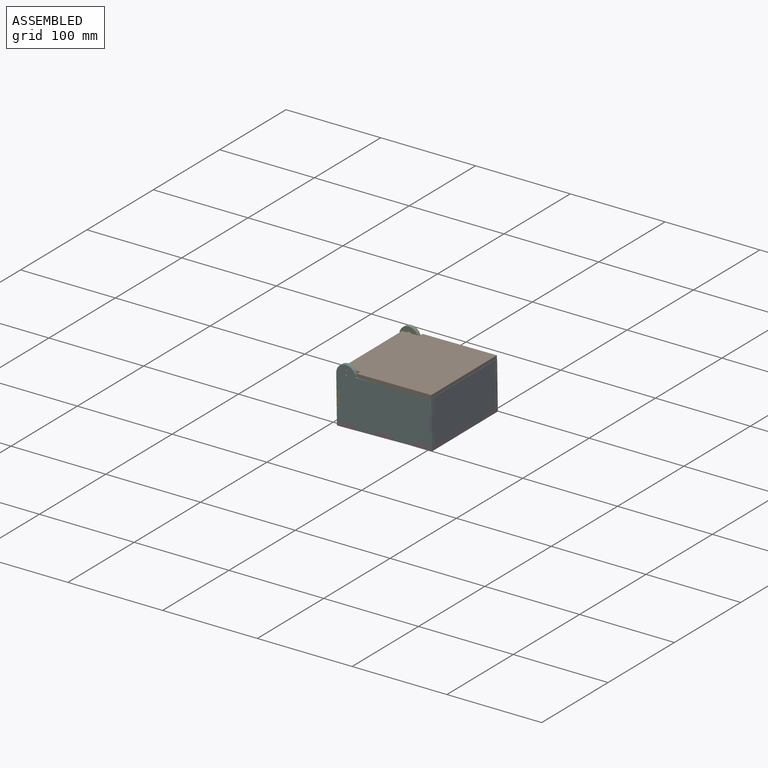
[diagram: assembled view]
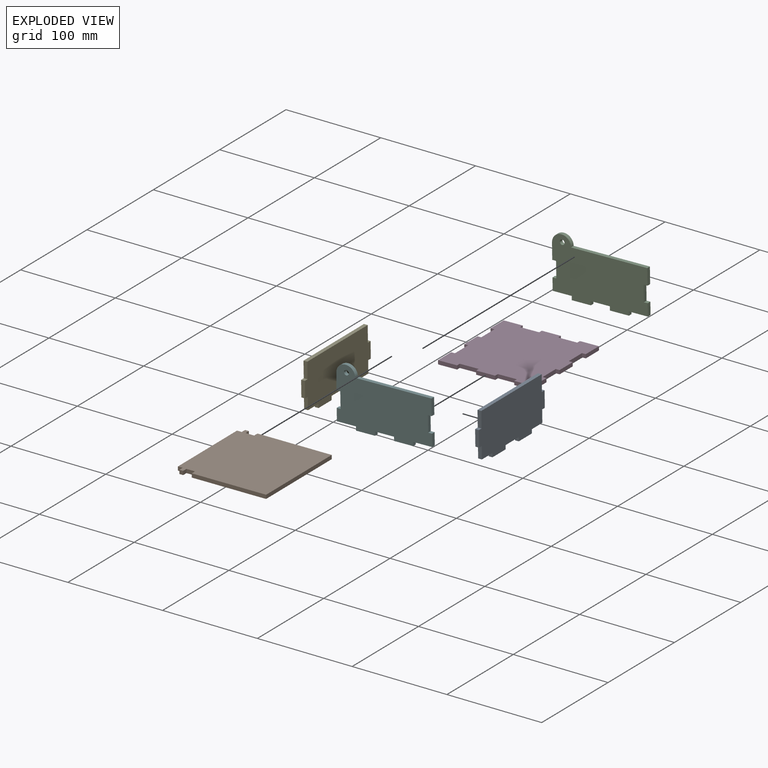
[diagram: exploded view]
GUIDED TOUR — MATED ASSEMBLY (Onshape document 094356303882595e90816846, AutoMate assembly 094356303882595e90816846_53f9541e1c70ac6278a6380b_fa754432ed5df0bc3006adc8_default)

This assembly has 6 components, labeled P0..P5 below (a component is one placed occurrence of a part; the same part can appear more than once), held together by 5 mates. A mate is a constraint between two components; its type names the relative motion it leaves free:
  FASTENED — locks the two components together rigidly (no relative motion),
  REVOLUTE — leaves rotation about the listed axis free (a hinge).
Axis/direction vectors are unit vectors and 'through' points are millimeter coordinates, both in the assembly's world frame.

MATES
  1. FASTENED "Fastened 4": P4 <-> P3, direction (0.008, -1.000, 0.004) through (-86.83, 9.39, -12.31) mm
  2. FASTENED "Fastened 1": P3 <-> P2, direction (-0.008, 1.000, -0.004) through (-49.48, 89.68, -9.95) mm
  3. REVOLUTE "Revolute 2": P1 <-> P5, axis (0.008, -1.000, 0.004) through (-78.85, -10.35, 38.46) mm
  4. FASTENED "Fastened 2": P3 <-> P5, direction (1.000, 0.008, 0.018) through (-68.70, -8.47, -11.91) mm
  5. FASTENED "Fastened 3": P0 <-> P3, direction (-0.008, 1.000, -0.004) through (8.69, 70.12, -10.83) mm

ASSEMBLY ORDER
  1. P5 — the base component [order verified]
  2. P3 [order verified]
  3. P1 [order verified]
  4. P2 [order verified]
  5. P0 [order verified]
  6. P4 [order verified]
Order-tag legend:
  [order verified] — this step's position reverses a verified removal order: the component was checked to insert without passing through the ones already placed.

Of the 6 components, 6 carry the full construction recipe — the FeatureScript program that regenerates the part's solid from scratch; the rest are supplied as boundary geometry only.
Each toured component is shown spotlighted twice — in the assembled view, then in the exploded view, where a leader line traces a displaced component back to its assembled socket (saturated green if recipe-attached, orange if geometry-only; every other component desaturated gray) — followed by its recipe or geometry summary and the mates that hold it.
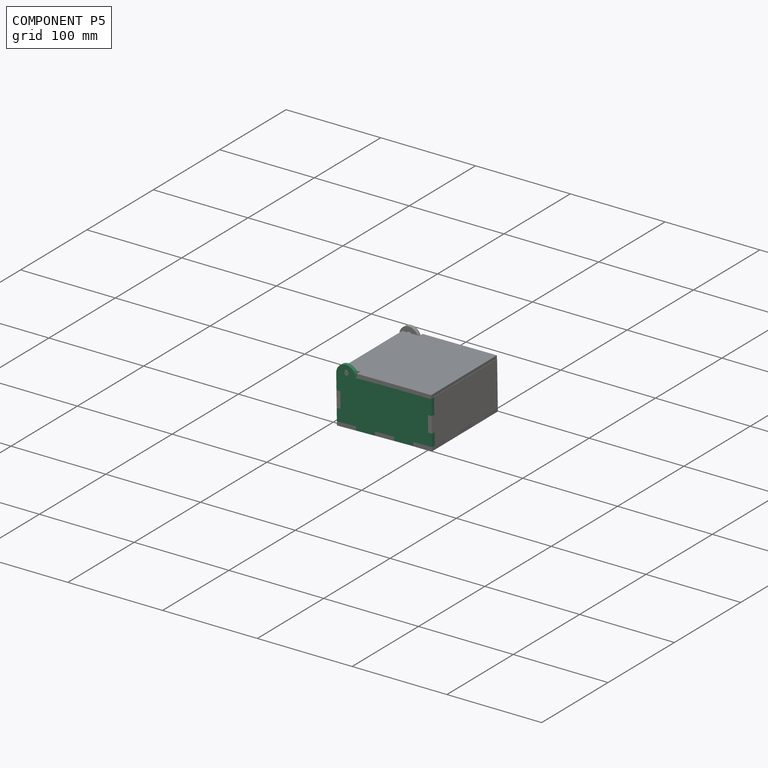
[diagram: component P5 — assembled]
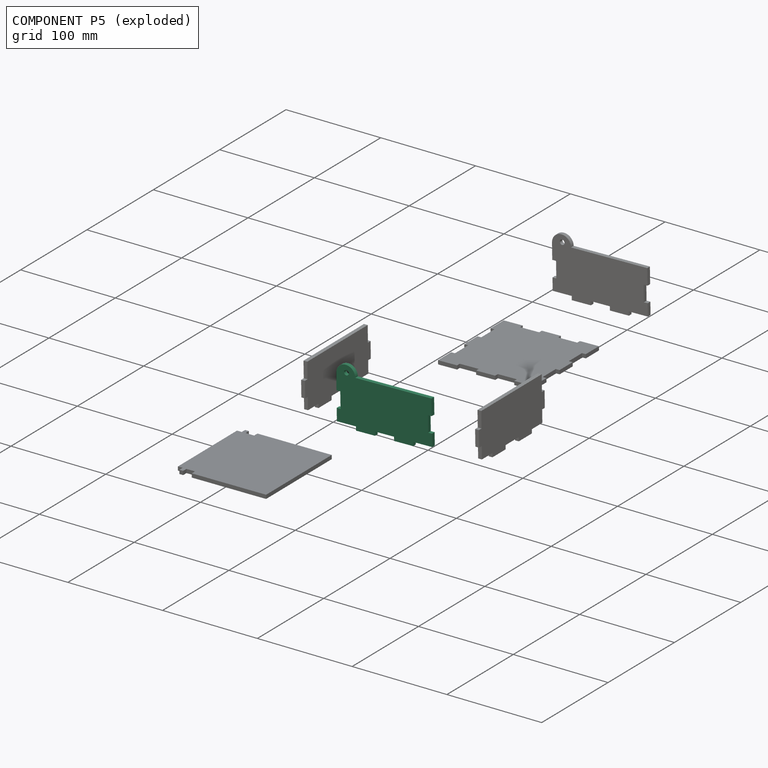
[diagram: component P5 — exploded]
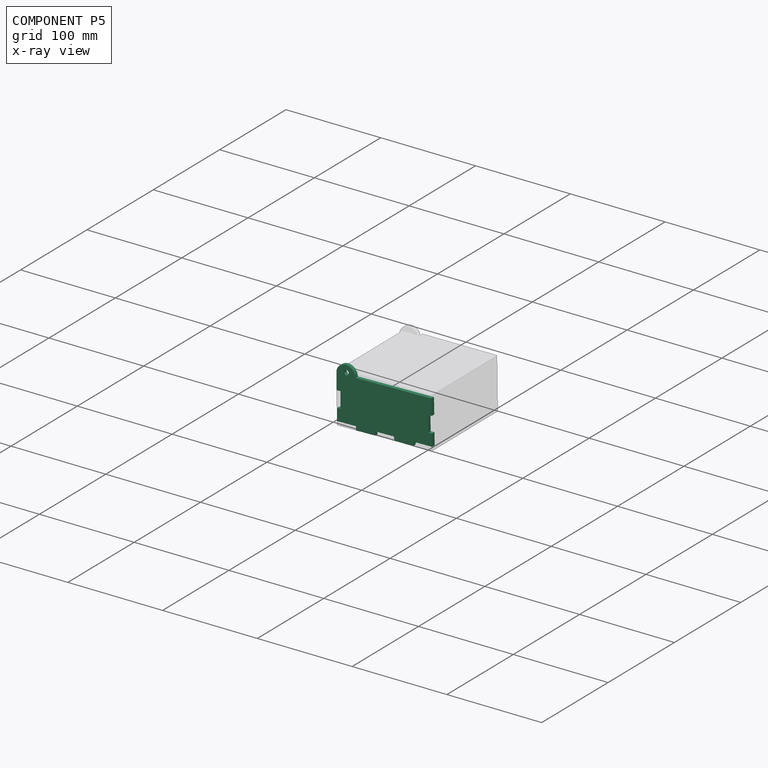
[diagram: component P5 — x-ray view]
COMPONENT P5 — same part as P2 (CADFS 00479811); its construction recipe is shown at P2.
Held by: REVOLUTE mate "Revolute 2" to P1; FASTENED mate "Fastened 2" to P3.
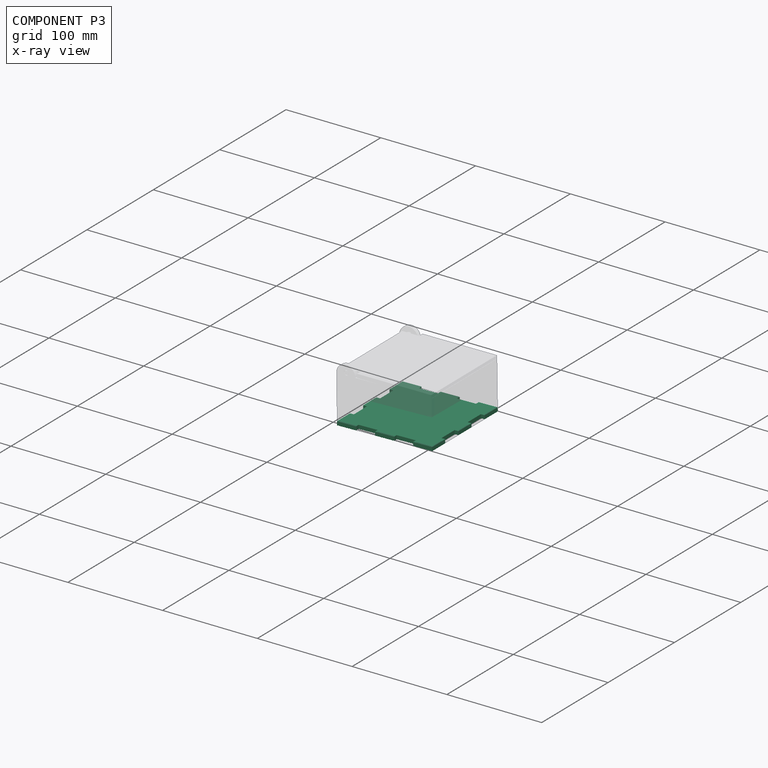
[diagram: component P3 — x-ray view]
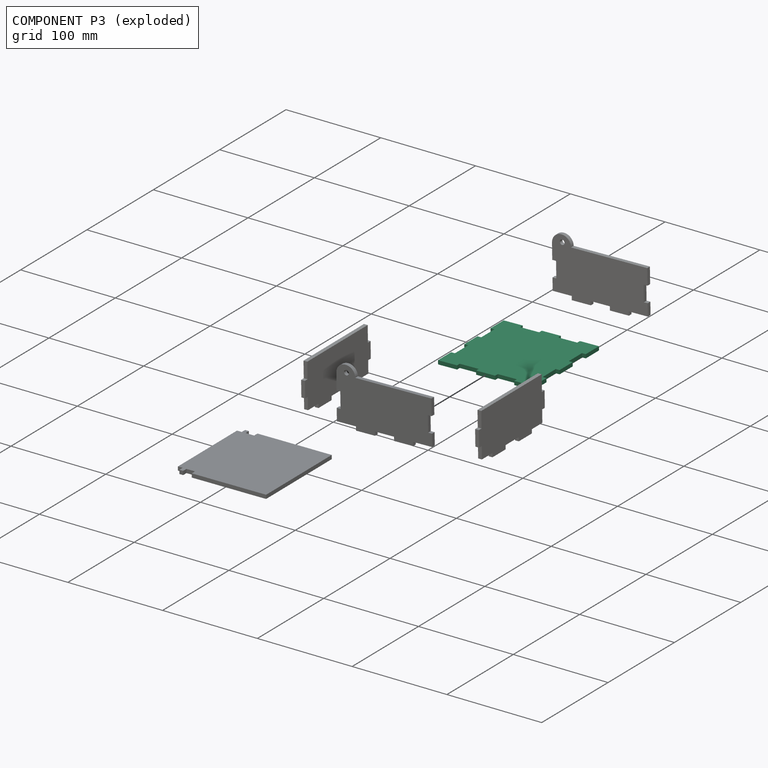
[diagram: component P3 — exploded]
COMPONENT P3 — recipe-attached (CADFS 00479810, mesh-verified: the recipe's output STEP matches this component's geometry to below the mesh-comparison resolution (tessellation chordal tolerance ~0.212 mm)).
Held by: FASTENED mate "Fastened 4" to P4; FASTENED mate "Fastened 1" to P2; FASTENED mate "Fastened 2" to P5; FASTENED mate "Fastened 3" to P0.
Construction recipe (FeatureScript — the CAD program that rebuilds this solid; sketch coordinates are in the units given by the * unit suffixes, e.g. mm):

FeatureScript 1549;
import(path : "onshape/std/geometry.fs", version : "1549.0");
import(path : "onshape/std/common.fs", version : "1549.0");
const mm = millimeter;
const VERTEX = EntityType.VERTEX;
const EDGE = EntityType.EDGE;
const FACE = EntityType.FACE;
const BODY = EntityType.BODY;
function v(x, y){return vector(x, y);}
function OD(order){return orderDisambiguation(order);}
function OSD(set){return originalSetDisambiguation(set);}
function TD(topology){return topologyDisambiguation(topology);}
function TDD(query){return trueDependencyDisambiguation(query);}
function sQuery(a, b, c) {return sketchEntityQuery(a, b, c);}

annotation { "Feature Type Name" : "Feature", "Feature Type Description" : "" }
export const myFeature = defineFeature(function(context is Context, id is Id, definition is map)
    precondition{}
    {
        {
            var Q0;
            Q0=qCreatedBy(makeId("Top.planeOp"),FACE);
            var sketch = newSketch(context, id + "F0", { "sketchPlane" : qUnion([Q0])});
            skLineSegment(sketch, "E0.bottom", {"start": v(0, 0) * mm, "end": v(100, 0) * mm});
            skLineSegment(sketch, "E0.top", {"start": v(0, 100) * mm, "end": v(100, 100) * mm});
            skLineSegment(sketch, "E0.left", {"start": v(0, 0) * mm, "end": v(0, 100) * mm});
            skLineSegment(sketch, "E0.right", {"start": v(100, 0) * mm, "end": v(100, 100) * mm});
            skSolve(sketch);
        }
        {
            var Q0;
            Q0 = qSketchRegion(id + "F0", true);
            extrude(context, id + "F1", {"entities" : qUnion([Q0]), "depth" : 4 * mm});
        }
        {
            var Q0;
            Q0=qCreatedBy(makeId("Top.planeOp"),FACE);
            var sketch = newSketch(context, id + "F2", { "sketchPlane" : qUnion([Q0])});
            skLineSegment(sketch, "E1.bottom", {"start": v(20, 0) * mm, "end": v(40, 0) * mm});
            skLineSegment(sketch, "E1.top", {"start": v(20, 4) * mm, "end": v(40, 4) * mm});
            skLineSegment(sketch, "E1.left", {"start": v(20, 0) * mm, "end": v(20, 4) * mm});
            skLineSegment(sketch, "E1.right", {"start": v(40, 0) * mm, "end": v(40, 4) * mm});
            skLineSegment(sketch, "E2.bottom", {"start": v(60, 0) * mm, "end": v(80, 0) * mm});
            skLineSegment(sketch, "E2.top", {"start": v(60, 4) * mm, "end": v(80, 4) * mm});
            skLineSegment(sketch, "E2.left", {"start": v(60, 0) * mm, "end": v(60, 4) * mm});
            skLineSegment(sketch, "E2.right", {"start": v(80, 0) * mm, "end": v(80, 4) * mm});
            skLineSegment(sketch, "E3.bottom", {"start": v(0, 20) * mm, "end": v(4, 20) * mm});
            skLineSegment(sketch, "E3.top", {"start": v(0, 40) * mm, "end": v(4, 40) * mm});
            skLineSegment(sketch, "E3.left", {"start": v(0, 20) * mm, "end": v(0, 40) * mm});
            skLineSegment(sketch, "E3.right", {"start": v(4, 20) * mm, "end": v(4, 40) * mm});
            skLineSegment(sketch, "E4.bottom", {"start": v(0, 60) * mm, "end": v(4, 60) * mm});
            skLineSegment(sketch, "E4.top", {"start": v(0, 80) * mm, "end": v(4, 80) * mm});
            skLineSegment(sketch, "E4.left", {"start": v(0, 60) * mm, "end": v(0, 80) * mm});
            skLineSegment(sketch, "E4.right", {"start": v(4, 60) * mm, "end": v(4, 80) * mm});
            skLineSegment(sketch, "E5.bottom", {"start": v(20, 100) * mm, "end": v(40, 100) * mm});
            skLineSegment(sketch, "E5.top", {"start": v(20, 96) * mm, "end": v(40, 96) * mm});
            skLineSegment(sketch, "E5.left", {"start": v(20, 100) * mm, "end": v(20, 96) * mm});
            skLineSegment(sketch, "E5.right", {"start": v(40, 100) * mm, "end": v(40, 96) * mm});
            skLineSegment(sketch, "E6.bottom", {"start": v(60, 96) * mm, "end": v(80, 96) * mm});
            skLineSegment(sketch, "E6.top", {"start": v(60, 100) * mm, "end": v(80, 100) * mm});
            skLineSegment(sketch, "E6.left", {"start": v(60, 96) * mm, "end": v(60, 100) * mm});
            skLineSegment(sketch, "E6.right", {"start": v(80, 96) * mm, "end": v(80, 100) * mm});
            skLineSegment(sketch, "E7.bottom", {"start": v(96, 80) * mm, "end": v(100, 80) * mm});
            skLineSegment(sketch, "E7.top", {"start": v(96, 60) * mm, "end": v(100, 60) * mm});
            skLineSegment(sketch, "E7.left", {"start": v(96, 80) * mm, "end": v(96, 60) * mm});
            skLineSegment(sketch, "E7.right", {"start": v(100, 80) * mm, "end": v(100, 60) * mm});
            skLineSegment(sketch, "E8.bottom", {"start": v(100, 20) * mm, "end": v(96, 20) * mm});
            skLineSegment(sketch, "E8.top", {"start": v(100, 40) * mm, "end": v(96, 40) * mm});
            skLineSegment(sketch, "E8.left", {"start": v(100, 20) * mm, "end": v(100, 40) * mm});
            skLineSegment(sketch, "E8.right", {"start": v(96, 20) * mm, "end": v(96, 40) * mm});
            skSolve(sketch);
        }
        {
            var Q0;
            Q0 = qSketchRegion(id + "F2", true);
            extrude(context, id + "F3", {"entities" : qUnion([Q0]), "operationType" : NewBodyOperationType.REMOVE, "depth" : 4 * mm});
        }
    });
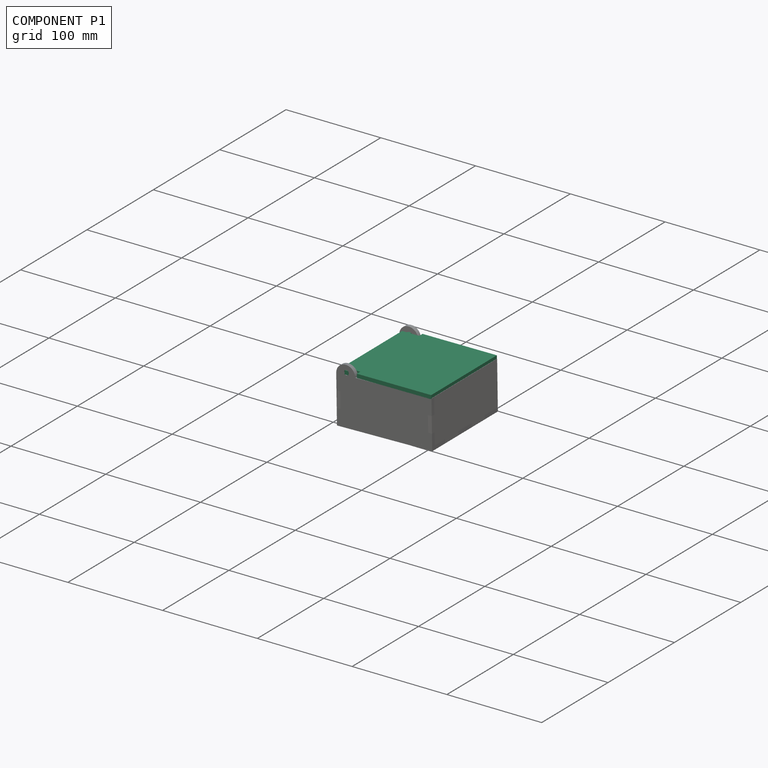
[diagram: component P1 — assembled]
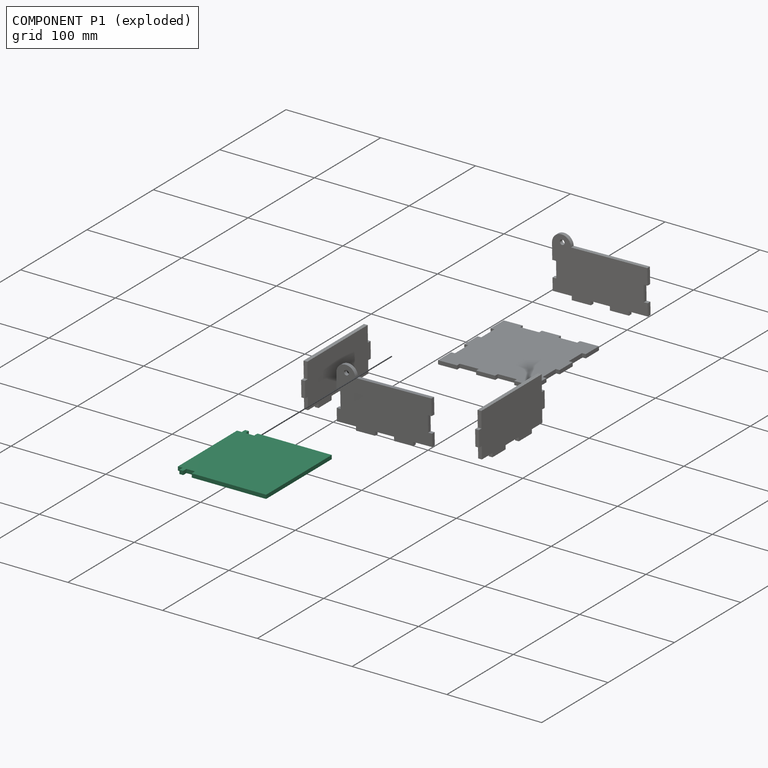
[diagram: component P1 — exploded]
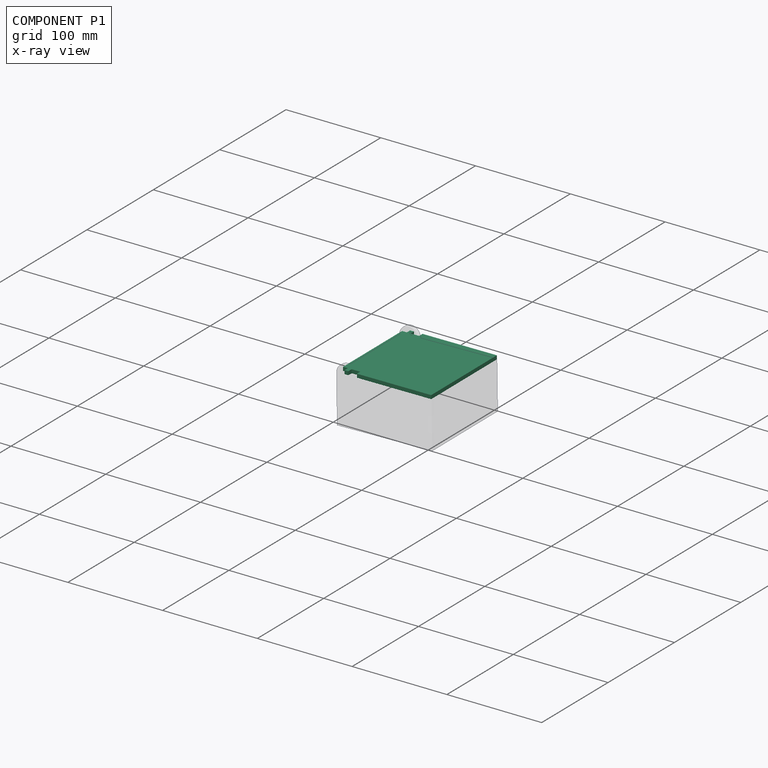
[diagram: component P1 — x-ray view]
COMPONENT P1 — recipe-attached (CADFS 00479814, mesh-verified: the recipe's output STEP matches this component's geometry to below the mesh-comparison resolution (tessellation chordal tolerance ~0.208 mm)).
Held by: REVOLUTE mate "Revolute 2" to P5.
Construction recipe (FeatureScript — the CAD program that rebuilds this solid; sketch coordinates are in the units given by the * unit suffixes, e.g. mm):

FeatureScript 1549;
import(path : "onshape/std/geometry.fs", version : "1549.0");
import(path : "onshape/std/common.fs", version : "1549.0");
const mm = millimeter;
const VERTEX = EntityType.VERTEX;
const EDGE = EntityType.EDGE;
const FACE = EntityType.FACE;
const BODY = EntityType.BODY;
function v(x, y){return vector(x, y);}
function OD(order){return orderDisambiguation(order);}
function OSD(set){return originalSetDisambiguation(set);}
function TD(topology){return topologyDisambiguation(topology);}
function TDD(query){return trueDependencyDisambiguation(query);}
function sQuery(a, b, c) {return sketchEntityQuery(a, b, c);}

annotation { "Feature Type Name" : "Feature", "Feature Type Description" : "" }
export const myFeature = defineFeature(function(context is Context, id is Id, definition is map)
    precondition{}
    {
        {
            var Q0;
            Q0=qCreatedBy(makeId("Top.planeOp"),FACE);
            var sketch = newSketch(context, id + "F0", { "sketchPlane" : qUnion([Q0])});
            skLineSegment(sketch, "E0.bottom", {"start": v(0, 0) * mm, "end": v(100, 0) * mm});
            skLineSegment(sketch, "E0.top", {"start": v(0, 100) * mm, "end": v(100, 100) * mm});
            skLineSegment(sketch, "E0.left", {"start": v(0, 0) * mm, "end": v(0, 100) * mm});
            skLineSegment(sketch, "E0.right", {"start": v(100, 0) * mm, "end": v(100, 100) * mm});
            skSolve(sketch);
        }
        {
            var Q0;
            Q0 = qSketchRegion(id + "F0", true);
            extrude(context, id + "F1", {"entities" : qUnion([Q0]), "depth" : 4 * mm});
        }
        {
            var Q0;
            Q0=qCreatedBy(makeId("Top.planeOp"),FACE);
            var sketch = newSketch(context, id + "F2", { "sketchPlane" : qUnion([Q0])});
            skLineSegment(sketch, "E1.bottom", {"start": v(0, 0) * mm, "end": v(5, 0) * mm});
            skLineSegment(sketch, "E1.top", {"start": v(0, 22) * mm, "end": v(5, 22) * mm});
            skLineSegment(sketch, "E1.left", {"start": v(0, 0) * mm, "end": v(0, 22) * mm});
            skLineSegment(sketch, "E1.right", {"start": v(5, 0) * mm, "end": v(5, 22) * mm});
            skLineSegment(sketch, "E2.bottom", {"start": v(100, 0) * mm, "end": v(95, 0) * mm});
            skLineSegment(sketch, "E2.top", {"start": v(100, 22) * mm, "end": v(95, 22) * mm});
            skLineSegment(sketch, "E2.left", {"start": v(100, 0) * mm, "end": v(100, 22) * mm});
            skLineSegment(sketch, "E2.right", {"start": v(95, 0) * mm, "end": v(95, 22) * mm});
            skSolve(sketch);
        }
        {
            var Q0;
            Q0 = qSketchRegion(id + "F2", true);
            extrude(context, id + "F3", {"entities" : qUnion([Q0]), "operationType" : NewBodyOperationType.REMOVE, "depth" : 4 * mm});
        }
        {
            var Q0;
            Q0=qCreatedBy(makeId("Top.planeOp"),FACE);
            var sketch = newSketch(context, id + "F4", { "sketchPlane" : qUnion([Q0])});
            skLineSegment(sketch, "E3.bottom", {"start": v(5, 13) * mm, "end": v(-5, 13) * mm});
            skLineSegment(sketch, "E3.top", {"start": v(5, 9) * mm, "end": v(-5, 9) * mm});
            skLineSegment(sketch, "E3.left", {"start": v(5, 13) * mm, "end": v(5, 9) * mm});
            skLineSegment(sketch, "E3.right", {"start": v(-5, 13) * mm, "end": v(-5, 9) * mm});
            skLineSegment(sketch, "E4.bottom", {"start": v(95, 13) * mm, "end": v(105, 13) * mm});
            skLineSegment(sketch, "E4.top", {"start": v(95, 9) * mm, "end": v(105, 9) * mm});
            skLineSegment(sketch, "E4.left", {"start": v(95, 13) * mm, "end": v(95, 9) * mm});
            skLineSegment(sketch, "E4.right", {"start": v(105, 13) * mm, "end": v(105, 9) * mm});
            skSolve(sketch);
        }
        {
            var Q0;
            Q0 = qSketchRegion(id + "F4", true);
            extrude(context, id + "F5", {"entities" : qUnion([Q0]), "operationType" : NewBodyOperationType.ADD, "depth" : 4 * mm});
        }
        {
            var Q0;
            Q0=qCreatedBy(makeId("Top.planeOp"),FACE);
            var sketch = newSketch(context, id + "F6", { "sketchPlane" : qUnion([Q0])});
            skLineSegment(sketch, "E5.bottom", {"start": v(-5, 13) * mm, "end": v(0, 13) * mm});
            skLineSegment(sketch, "E5.top", {"start": v(-5, 9) * mm, "end": v(0, 9) * mm});
            skLineSegment(sketch, "E5.left", {"start": v(-5, 13) * mm, "end": v(-5, 9) * mm});
            skLineSegment(sketch, "E5.right", {"start": v(0, 13) * mm, "end": v(0, 9) * mm});
            skSolve(sketch);
        }
        {
            var Q0;
            Q0 = qSketchRegion(id + "F6", true);
            extrude(context, id + "F7", {"entities" : qUnion([Q0]), "operationType" : NewBodyOperationType.REMOVE, "depth" : 4 * mm, "offsetDistance" : 25 * mm});
        }
        {
            var Q0;
            Q0=qCreatedBy(makeId("Top.planeOp"),FACE);
            var sketch = newSketch(context, id + "F8", { "sketchPlane" : qUnion([Q0])});
            skLineSegment(sketch, "E6.bottom", {"start": v(105, 9) * mm, "end": v(100, 9) * mm});
            skLineSegment(sketch, "E6.top", {"start": v(105, 13) * mm, "end": v(100, 13) * mm});
            skLineSegment(sketch, "E6.left", {"start": v(105, 9) * mm, "end": v(105, 13) * mm});
            skLineSegment(sketch, "E6.right", {"start": v(100, 9) * mm, "end": v(100, 13) * mm});
            skSolve(sketch);
        }
        {
            var Q0;
            Q0 = qSketchRegion(id + "F8", true);
            extrude(context, id + "F9", {"entities" : qUnion([Q0]), "operationType" : NewBodyOperationType.REMOVE, "depth" : 4 * mm, "offsetDistance" : 25 * mm});
        }
        {
            var Q0;
            Q0=qCreatedBy(makeId("Top.planeOp"),FACE);
            var sketch = newSketch(context, id + "F10", { "sketchPlane" : qUnion([Q0])});
            skLineSegment(sketch, "E7.bottom", {"start": v(95, 0) * mm, "end": v(5, 0) * mm});
            skLineSegment(sketch, "E7.top", {"start": v(95, 4) * mm, "end": v(5, 4) * mm});
            skLineSegment(sketch, "E7.left", {"start": v(95, 0) * mm, "end": v(95, 4) * mm});
            skLineSegment(sketch, "E7.right", {"start": v(5, 0) * mm, "end": v(5, 4) * mm});
            skSolve(sketch);
        }
        {
            var Q0;
            Q0 = qSketchRegion(id + "F10", true);
            extrude(context, id + "F11", {"entities" : qUnion([Q0]), "operationType" : NewBodyOperationType.REMOVE, "depth" : 4 * mm, "offsetDistance" : 25 * mm});
        }
    });
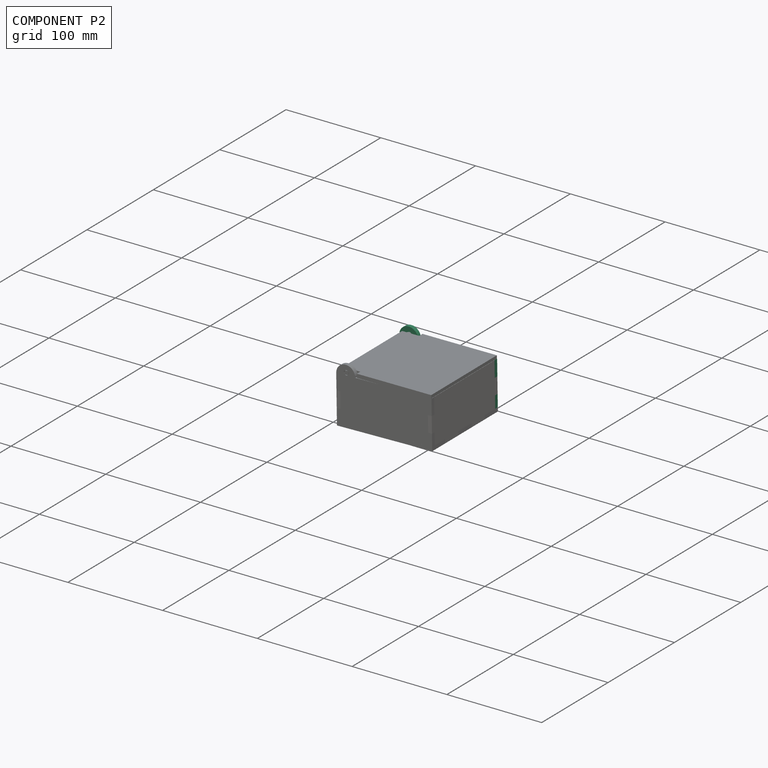
[diagram: component P2 — assembled]
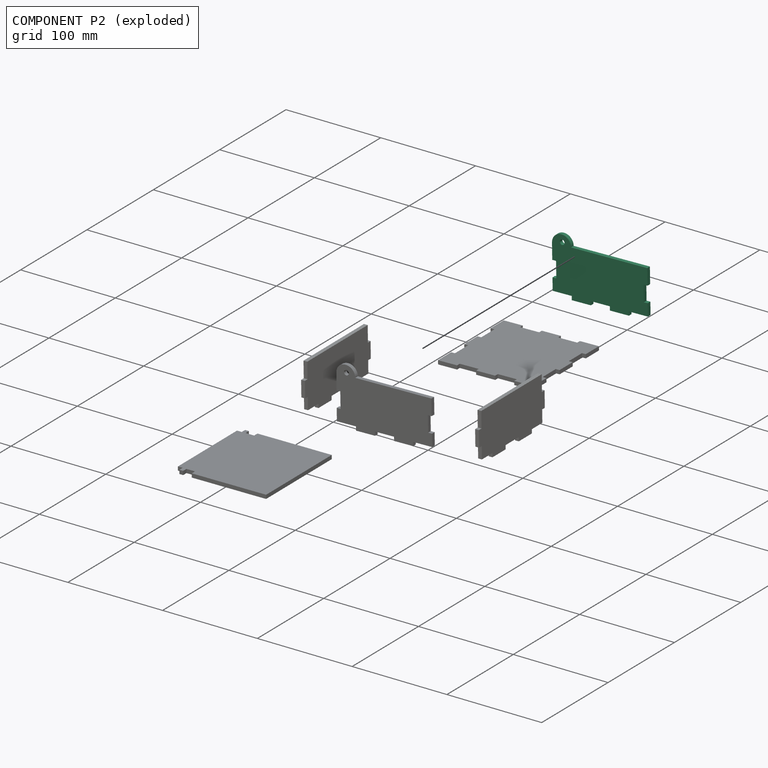
[diagram: component P2 — exploded]
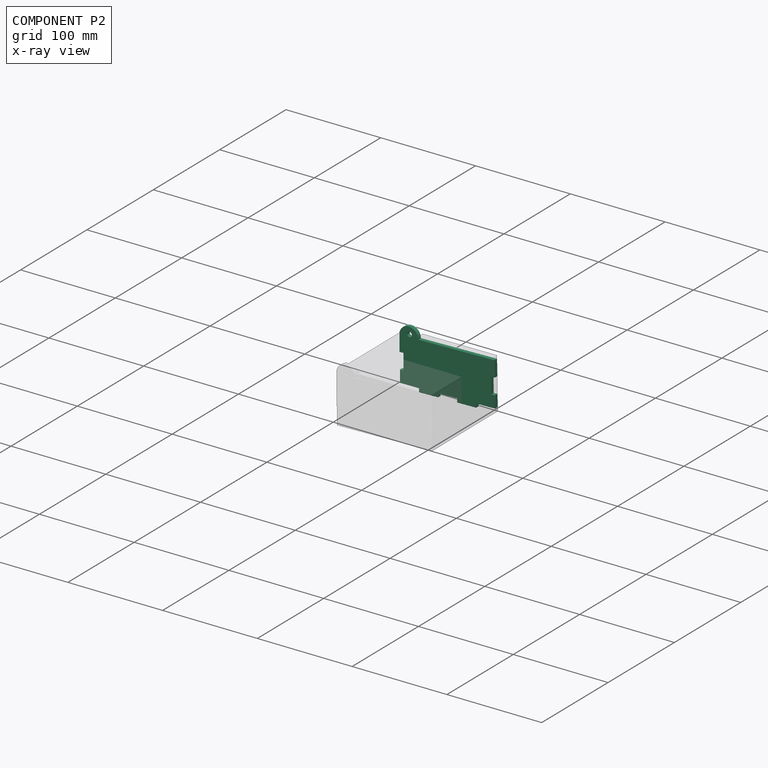
[diagram: component P2 — x-ray view]
COMPONENT P2 — recipe-attached (CADFS 00479811, mesh-verified: the recipe's output STEP matches this component's geometry to below the mesh-comparison resolution (tessellation chordal tolerance ~0.175 mm)).
Held by: FASTENED mate "Fastened 1" to P3.
Construction recipe (FeatureScript — the CAD program that rebuilds this solid; sketch coordinates are in the units given by the * unit suffixes, e.g. mm):

FeatureScript 1549;
import(path : "onshape/std/geometry.fs", version : "1549.0");
import(path : "onshape/std/common.fs", version : "1549.0");
const mm = millimeter;
const VERTEX = EntityType.VERTEX;
const EDGE = EntityType.EDGE;
const FACE = EntityType.FACE;
const BODY = EntityType.BODY;
function v(x, y){return vector(x, y);}
function OD(order){return orderDisambiguation(order);}
function OSD(set){return originalSetDisambiguation(set);}
function TD(topology){return topologyDisambiguation(topology);}
function TDD(query){return trueDependencyDisambiguation(query);}
function sQuery(a, b, c) {return sketchEntityQuery(a, b, c);}

annotation { "Feature Type Name" : "Feature", "Feature Type Description" : "" }
export const myFeature = defineFeature(function(context is Context, id is Id, definition is map)
    precondition{}
    {
        {
            var Q0;
            Q0=qCreatedBy(makeId("Front.planeOp"),FACE);
            var sketch = newSketch(context, id + "F0", { "sketchPlane" : qUnion([Q0])});
            skLineSegment(sketch, "E0.bottom", {"start": v(0, 0) * mm, "end": v(100, 0) * mm});
            skLineSegment(sketch, "E0.top", {"start": v(0, 50) * mm, "end": v(100, 50) * mm});
            skLineSegment(sketch, "E0.left", {"start": v(0, 0) * mm, "end": v(0, 50) * mm});
            skLineSegment(sketch, "E0.right", {"start": v(100, 0) * mm, "end": v(100, 50) * mm});
            skSolve(sketch);
        }
        {
            var Q0;
            Q0 = qSketchRegion(id + "F0", true);
            extrude(context, id + "F1", {"entities" : qUnion([Q0]), "depth" : 4 * mm});
        }
        {
            var Q0;
            Q0=qCreatedBy(makeId("Front.planeOp"),FACE);
            var sketch = newSketch(context, id + "F2", { "sketchPlane" : qUnion([Q0])});
            skLineSegment(sketch, "E1.bottom", {"start": v(0, 16.67) * mm, "end": v(4, 16.67) * mm});
            skLineSegment(sketch, "E1.top", {"start": v(0, 33.33) * mm, "end": v(4, 33.33) * mm});
            skLineSegment(sketch, "E1.left", {"start": v(0, 16.67) * mm, "end": v(0, 33.33) * mm});
            skLineSegment(sketch, "E1.right", {"start": v(4, 16.67) * mm, "end": v(4, 33.33) * mm});
            skLineSegment(sketch, "E2.bottom", {"start": v(0, 0) * mm, "end": v(20, 0) * mm});
            skLineSegment(sketch, "E2.top", {"start": v(0, 4) * mm, "end": v(20, 4) * mm});
            skLineSegment(sketch, "E2.left", {"start": v(0, 0) * mm, "end": v(0, 4) * mm});
            skLineSegment(sketch, "E2.right", {"start": v(20, 0) * mm, "end": v(20, 4) * mm});
            skLineSegment(sketch, "E3.bottom", {"start": v(40, 0) * mm, "end": v(60, 0) * mm});
            skLineSegment(sketch, "E3.top", {"start": v(40, 4) * mm, "end": v(60, 4) * mm});
            skLineSegment(sketch, "E3.left", {"start": v(40, 0) * mm, "end": v(40, 4) * mm});
            skLineSegment(sketch, "E3.right", {"start": v(60, 0) * mm, "end": v(60, 4) * mm});
            skLineSegment(sketch, "E4.bottom", {"start": v(80, 0) * mm, "end": v(100, 0) * mm});
            skLineSegment(sketch, "E4.top", {"start": v(80, 4) * mm, "end": v(100, 4) * mm});
            skLineSegment(sketch, "E4.left", {"start": v(80, 0) * mm, "end": v(80, 4) * mm});
            skLineSegment(sketch, "E4.right", {"start": v(100, 0) * mm, "end": v(100, 4) * mm});
            skLineSegment(sketch, "E5.bottom", {"start": v(100, 16.67) * mm, "end": v(96, 16.67) * mm});
            skLineSegment(sketch, "E5.top", {"start": v(100, 33.33) * mm, "end": v(96, 33.33) * mm});
            skLineSegment(sketch, "E5.left", {"start": v(100, 16.67) * mm, "end": v(100, 33.33) * mm});
            skLineSegment(sketch, "E5.right", {"start": v(96, 16.67) * mm, "end": v(96, 33.33) * mm});
            skSolve(sketch);
        }
        {
            var Q0;
            Q0 = qSketchRegion(id + "F2", true);
            extrude(context, id + "F3", {"entities" : qUnion([Q0]), "operationType" : NewBodyOperationType.REMOVE, "depth" : 4 * mm});
        }
        {
            var Q0;
            Q0=qCreatedBy(makeId("Front.planeOp"),FACE);
            var sketch = newSketch(context, id + "F4", { "sketchPlane" : qUnion([Q0])});
            skCircle(sketch, "E6", {"center": v(10, 50) * mm, "radius": 10 * mm});
            skSolve(sketch);
        }
        {
            var Q0;
            Q0 = qSketchRegion(id + "F4", true);
            extrude(context, id + "F5", {"entities" : qUnion([Q0]), "operationType" : NewBodyOperationType.ADD, "depth" : 4 * mm});
        }
        {
            var Q0;
            Q0=qCreatedBy(makeId("Front.planeOp"),FACE);
            var sketch = newSketch(context, id + "F6", { "sketchPlane" : qUnion([Q0])});
            skCircle(sketch, "E7", {"center": v(10.74, 52.54) * mm, "radius": 2.5 * mm});
            skSolve(sketch);
        }
        {
            var Q0;
            Q0 = qSketchRegion(id + "F6", true);
            extrude(context, id + "F7", {"entities" : qUnion([Q0]), "operationType" : NewBodyOperationType.REMOVE, "depth" : 4 * mm});
        }
    });
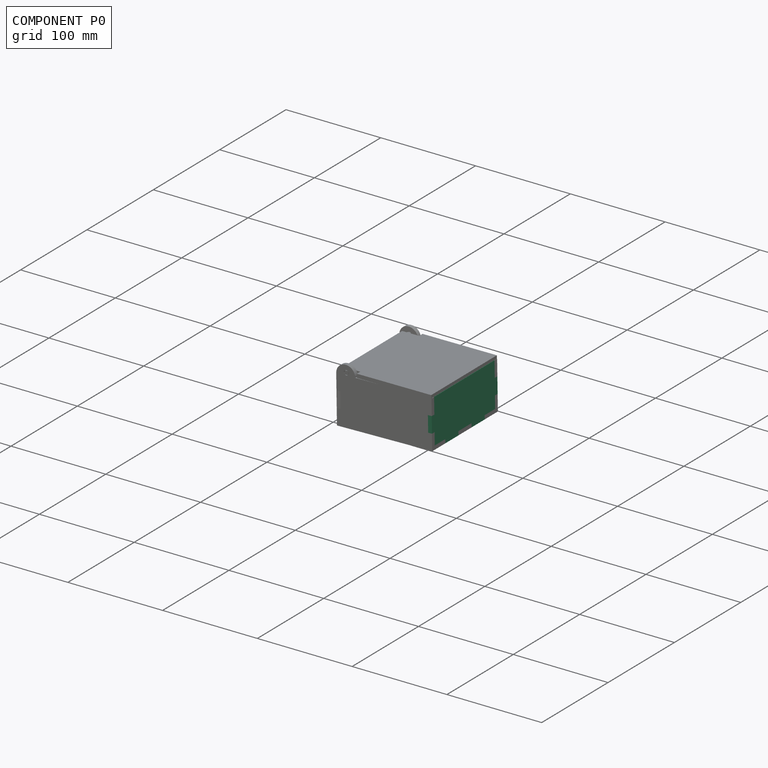
[diagram: component P0 — assembled]
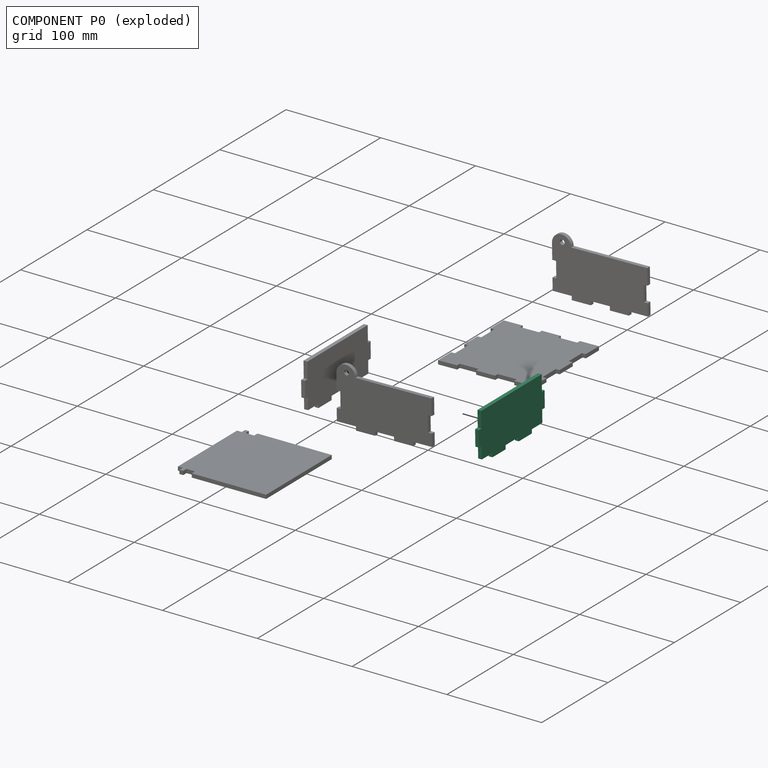
[diagram: component P0 — exploded]
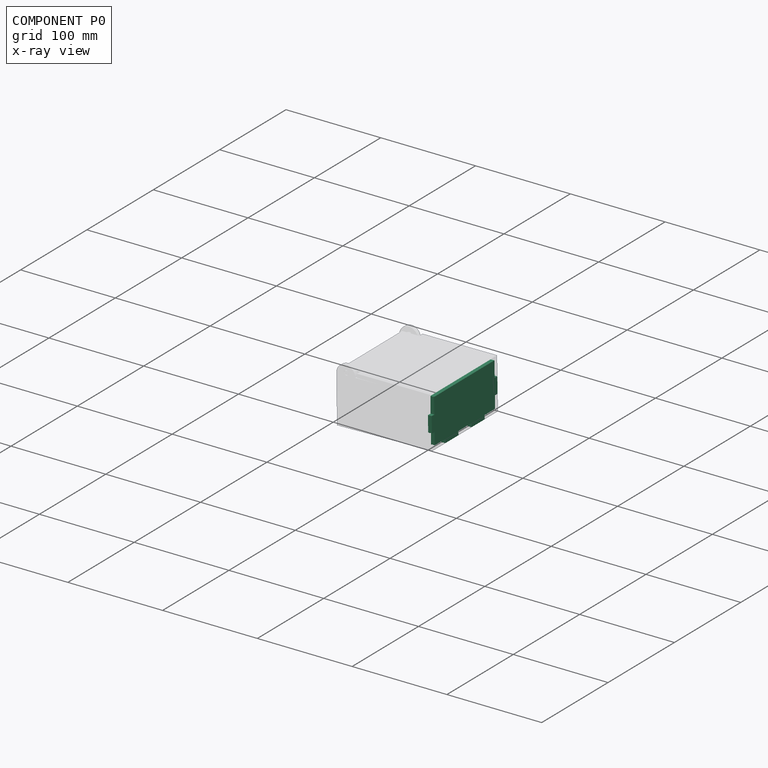
[diagram: component P0 — x-ray view]
COMPONENT P0 — recipe-attached (CADFS 00479813, mesh-verified: the recipe's output STEP matches this component's geometry to below the mesh-comparison resolution (tessellation chordal tolerance ~0.168 mm)).
Held by: FASTENED mate "Fastened 3" to P3.
Construction recipe (FeatureScript — the CAD program that rebuilds this solid; sketch coordinates are in the units given by the * unit suffixes, e.g. mm):

FeatureScript 1549;
import(path : "onshape/std/geometry.fs", version : "1549.0");
import(path : "onshape/std/common.fs", version : "1549.0");
const mm = millimeter;
const VERTEX = EntityType.VERTEX;
const EDGE = EntityType.EDGE;
const FACE = EntityType.FACE;
const BODY = EntityType.BODY;
function v(x, y){return vector(x, y);}
function OD(order){return orderDisambiguation(order);}
function OSD(set){return originalSetDisambiguation(set);}
function TD(topology){return topologyDisambiguation(topology);}
function TDD(query){return trueDependencyDisambiguation(query);}
function sQuery(a, b, c) {return sketchEntityQuery(a, b, c);}

annotation { "Feature Type Name" : "Feature", "Feature Type Description" : "" }
export const myFeature = defineFeature(function(context is Context, id is Id, definition is map)
    precondition{}
    {
        {
            var Q0;
            Q0=qCreatedBy(makeId("Right.planeOp"),FACE);
            var sketch = newSketch(context, id + "F0", { "sketchPlane" : qUnion([Q0])});
            skLineSegment(sketch, "E0.bottom", {"start": v(0, 0) * mm, "end": v(100, 0) * mm});
            skLineSegment(sketch, "E0.top", {"start": v(0, 50) * mm, "end": v(100, 50) * mm});
            skLineSegment(sketch, "E0.left", {"start": v(0, 0) * mm, "end": v(0, 50) * mm});
            skLineSegment(sketch, "E0.right", {"start": v(100, 0) * mm, "end": v(100, 50) * mm});
            skSolve(sketch);
        }
        {
            var Q0;
            Q0 = qSketchRegion(id + "F0", true);
            extrude(context, id + "F1", {"entities" : qUnion([Q0]), "depth" : 4 * mm});
        }
        {
            var Q0;
            Q0=qCreatedBy(makeId("Right.planeOp"),FACE);
            var sketch = newSketch(context, id + "F2", { "sketchPlane" : qUnion([Q0])});
            skLineSegment(sketch, "E1.bottom", {"start": v(0, 0) * mm, "end": v(4, 0) * mm});
            skLineSegment(sketch, "E1.top", {"start": v(0, 16.67) * mm, "end": v(4, 16.67) * mm});
            skLineSegment(sketch, "E1.left", {"start": v(0, 0) * mm, "end": v(0, 16.67) * mm});
            skLineSegment(sketch, "E1.right", {"start": v(4, 0) * mm, "end": v(4, 16.67) * mm});
            skLineSegment(sketch, "E2.bottom", {"start": v(0, 33.33) * mm, "end": v(4, 33.33) * mm});
            skLineSegment(sketch, "E2.top", {"start": v(0, 50) * mm, "end": v(4, 50) * mm});
            skLineSegment(sketch, "E2.left", {"start": v(0, 33.33) * mm, "end": v(0, 50) * mm});
            skLineSegment(sketch, "E2.right", {"start": v(4, 33.33) * mm, "end": v(4, 50) * mm});
            skLineSegment(sketch, "E3.bottom", {"start": v(0, 0) * mm, "end": v(20, 0) * mm});
            skLineSegment(sketch, "E3.top", {"start": v(0, 4) * mm, "end": v(20, 4) * mm});
            skLineSegment(sketch, "E3.left", {"start": v(0, 0) * mm, "end": v(0, 4) * mm});
            skLineSegment(sketch, "E3.right", {"start": v(20, 0) * mm, "end": v(20, 4) * mm});
            skLineSegment(sketch, "E4.bottom", {"start": v(40, 0) * mm, "end": v(60, 0) * mm});
            skLineSegment(sketch, "E4.top", {"start": v(40, 4) * mm, "end": v(60, 4) * mm});
            skLineSegment(sketch, "E4.left", {"start": v(40, 0) * mm, "end": v(40, 4) * mm});
            skLineSegment(sketch, "E4.right", {"start": v(60, 0) * mm, "end": v(60, 4) * mm});
            skLineSegment(sketch, "E5.bottom", {"start": v(100, 0) * mm, "end": v(96, 0) * mm});
            skLineSegment(sketch, "E5.top", {"start": v(100, 16.67) * mm, "end": v(96, 16.67) * mm});
            skLineSegment(sketch, "E5.left", {"start": v(100, 0) * mm, "end": v(100, 16.67) * mm});
            skLineSegment(sketch, "E5.right", {"start": v(96, 0) * mm, "end": v(96, 16.67) * mm});
            skLineSegment(sketch, "E6.bottom", {"start": v(96, 50) * mm, "end": v(100, 50) * mm});
            skLineSegment(sketch, "E6.top", {"start": v(96, 33.33) * mm, "end": v(100, 33.33) * mm});
            skLineSegment(sketch, "E6.left", {"start": v(96, 50) * mm, "end": v(96, 33.33) * mm});
            skLineSegment(sketch, "E6.right", {"start": v(100, 50) * mm, "end": v(100, 33.33) * mm});
            skLineSegment(sketch, "E7.bottom", {"start": v(100, 0) * mm, "end": v(80, 0) * mm});
            skLineSegment(sketch, "E7.top", {"start": v(100, 4) * mm, "end": v(80, 4) * mm});
            skLineSegment(sketch, "E7.left", {"start": v(100, 0) * mm, "end": v(100, 4) * mm});
            skLineSegment(sketch, "E7.right", {"start": v(80, 0) * mm, "end": v(80, 4) * mm});
            skSolve(sketch);
        }
        {
            var Q0;
            Q0 = qSketchRegion(id + "F2", true);
            extrude(context, id + "F3", {"entities" : qUnion([Q0]), "operationType" : NewBodyOperationType.REMOVE, "depth" : 4 * mm});
        }
    });
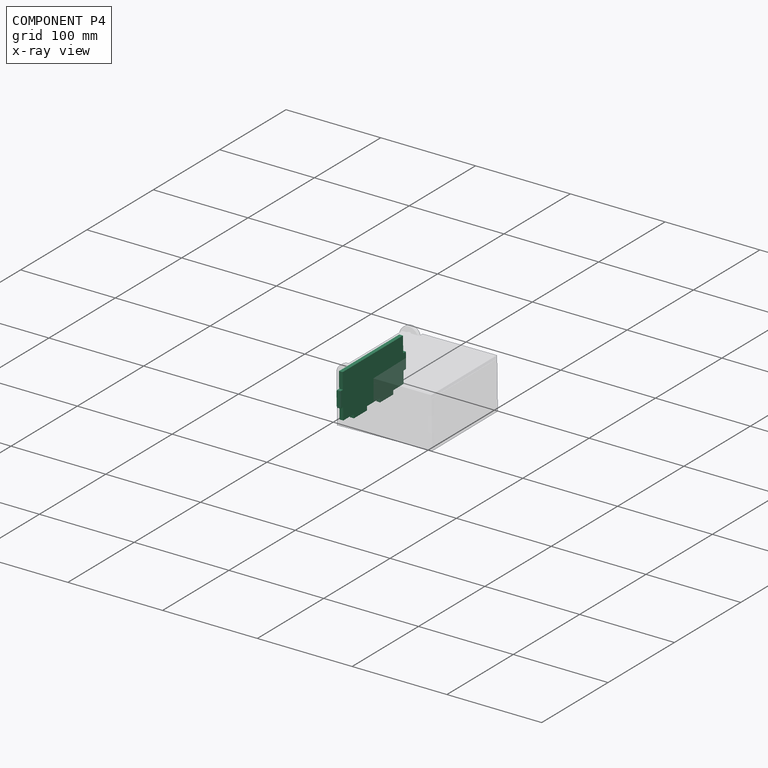
[diagram: component P4 — x-ray view]
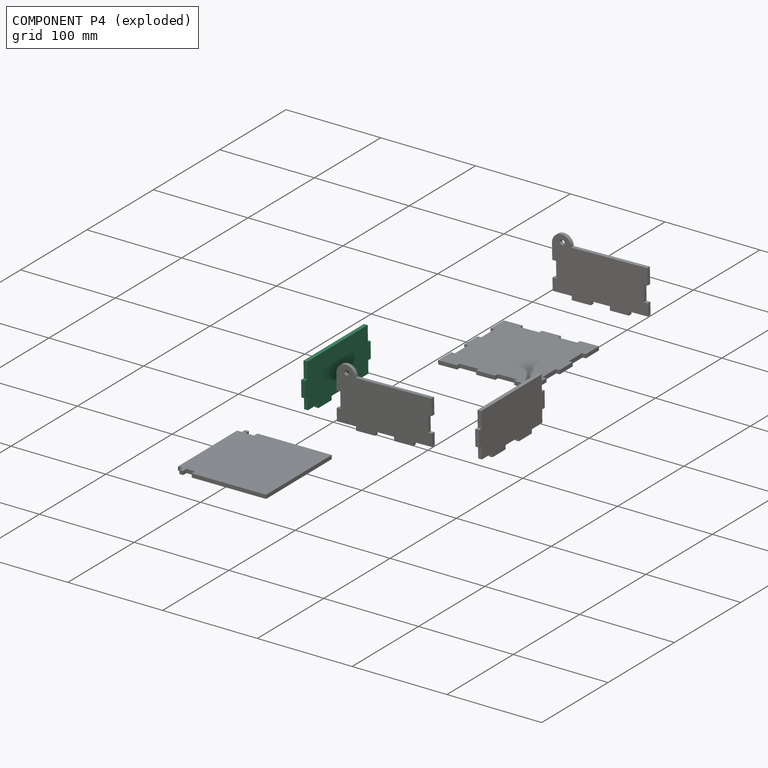
[diagram: component P4 — exploded]
COMPONENT P4 — same part as P0 (CADFS 00479813); its construction recipe is shown at P0.
Held by: FASTENED mate "Fastened 4" to P3.
PROVENANCE & LICENSES
Assembly (occurrences, transforms, mates, per-part STEP geometry): AutoMate dataset, Zenodo record 7776208, CC0.
Construction recipes: CADFS (HuggingFace VladPyatov/CADFS, CC-BY-4.0, layered over the ABC dataset), FeatureScript reconstruction programs keyed by ABC model id.
Join: ABC meta listings map ABC model id -> Onshape documentId; within a shared document, parts are matched by geometric signature (bounding-box dims + volume at 0.1% relative tolerance, exact B-rep face/solid counts).
Verification: 6 of this assembly's 6 components carry a recipe attachment, and every attachment is mesh-verified: the CADFS STEP and the AutoMate member STEP were compared as meshes in their shared local frame (symmetric sampled-point-to-mesh distance); worst across the 6 attachments: below the mesh-comparison resolution (tessellation chordal tolerance ~0.212 mm) on a 141 mm part.
Renders: orthographic iso camera (az 35 / el 25); the floor grid conveys scale (grid pitch printed in each image; no ruler). In the exploded view each component is displaced by its stored offset vector: the offsets alone carry the explosion direction (mate normal/axis signs are not orientation cues and do not encode it), and separation distances are assigned per mate-chain, not proportionally to assembly-order depth.
